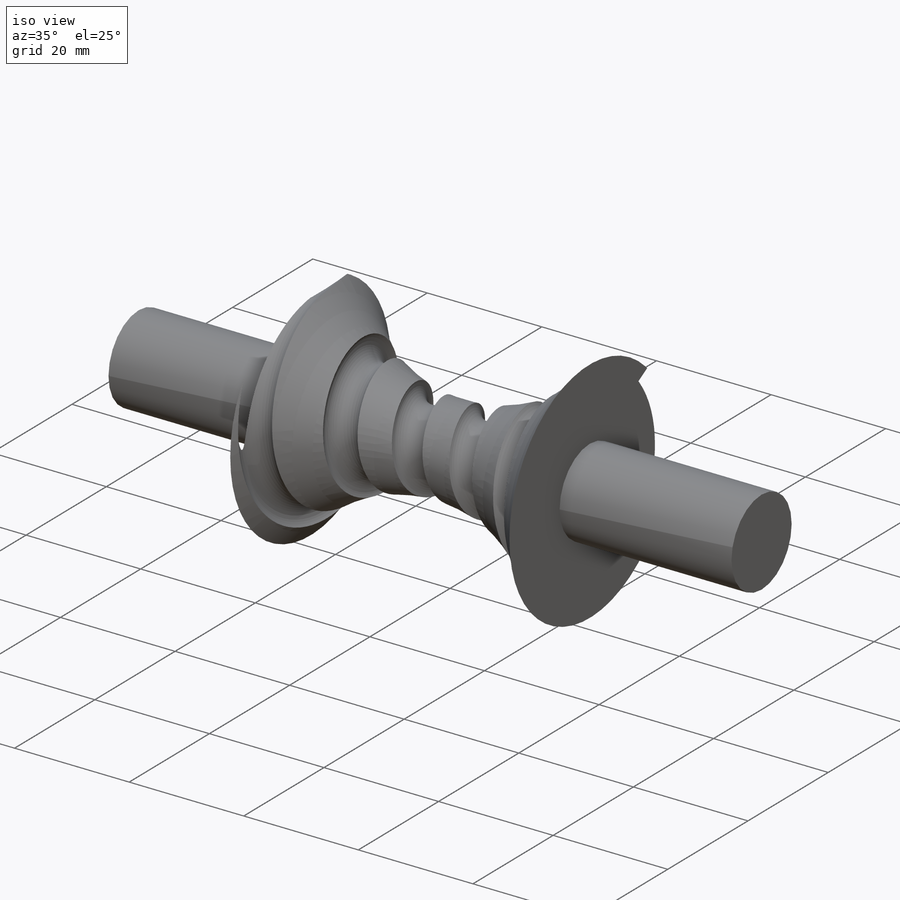
[diagram: iso view]
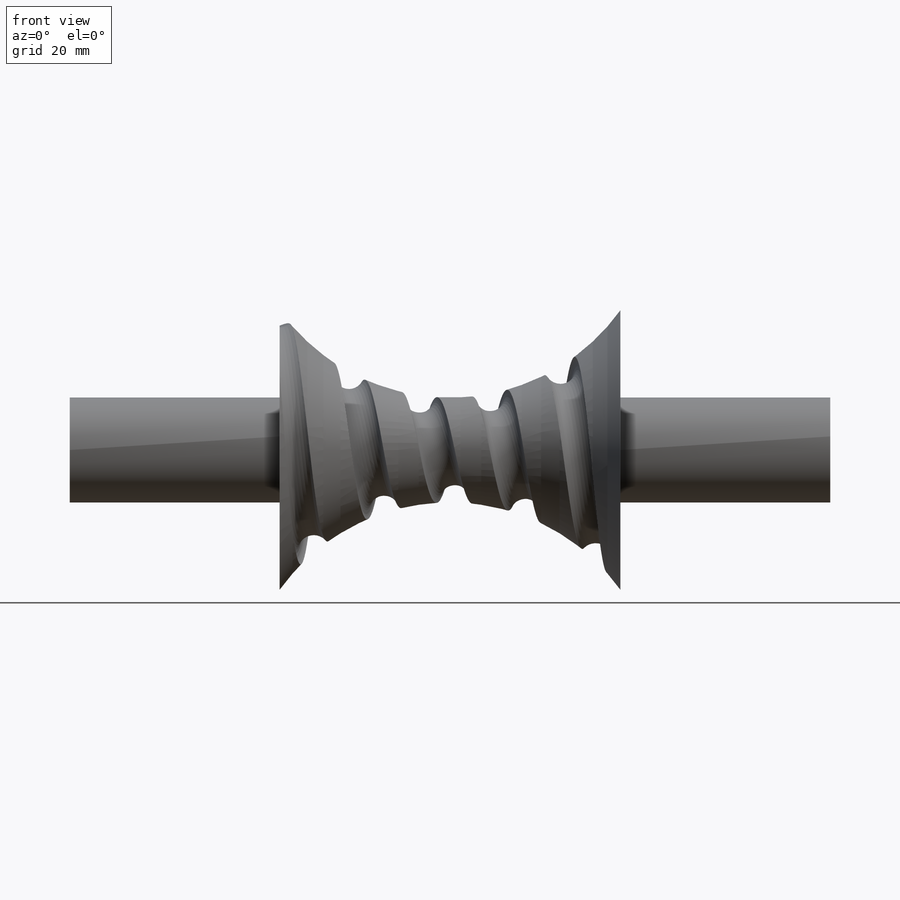
[diagram: front view]
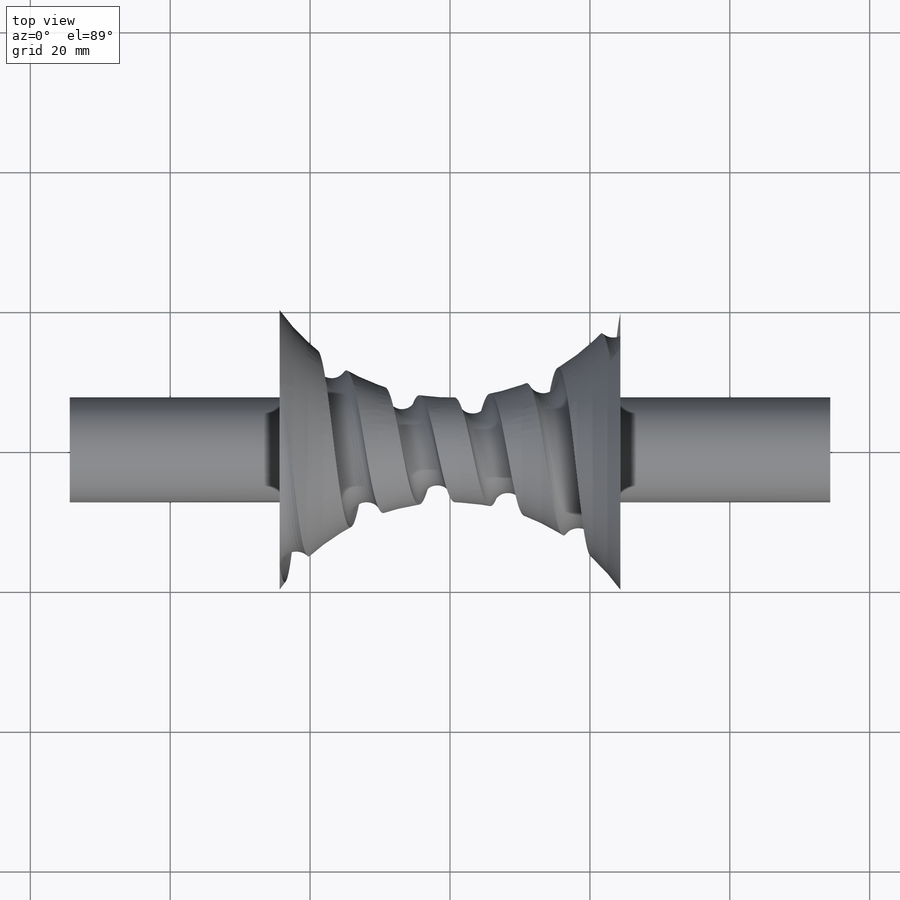
[diagram: top view]
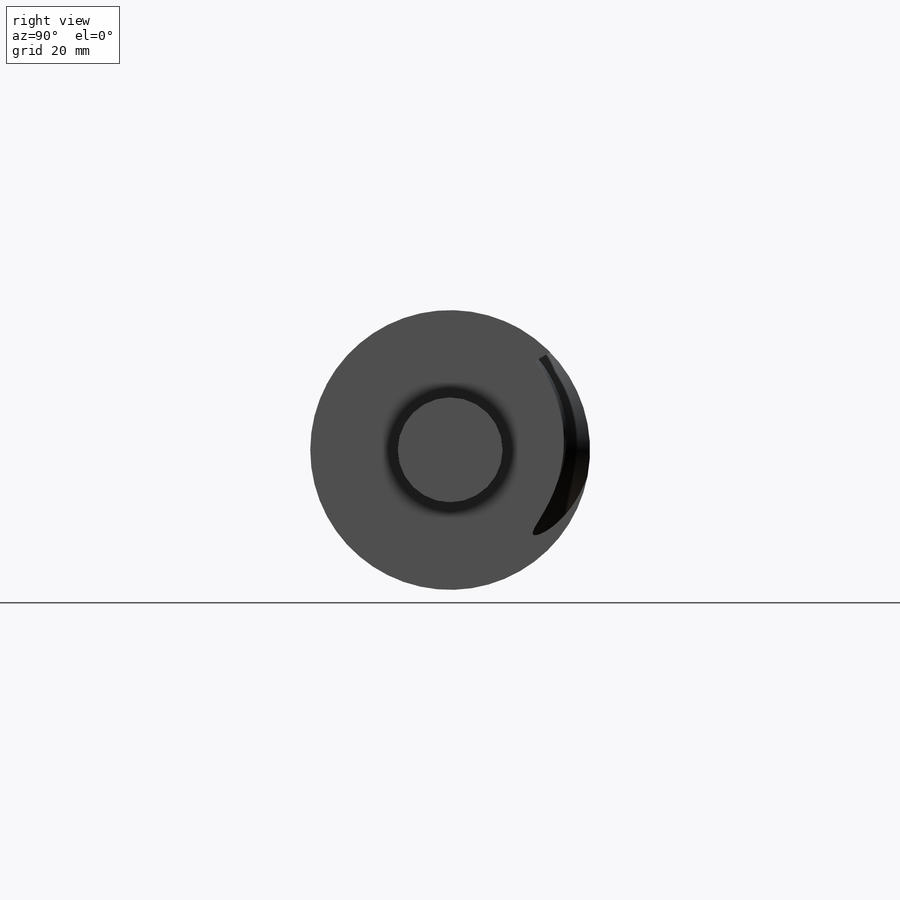
[diagram: right view]
SOLIDWORKS PART (.sldprt)
format: sldprt  version: not decoded by parser v0  size: 801,792 bytes
history: native  units: mm
features: plane x8, sketch x8, material x1, revolve x1, helix x1, sweep x1 (+8 scaffold rows collapsed)
feature tree (28):
  scaffold x8  (default folders/planes/origin — collapsed)
  material  "Matériau <non spécifié>"
  plane  "Plan de face"
  plane  "Plan de dessus"
  plane  "Plan de droite"
  sketch  "Esquisse1"  dims[c1.D1=30.0mm c1.D2=37.5mm c1.D3=20.0mm c1.D4=20.0mm c2.D3=15.0mm c2.D4=15.0mm c3.D3=15.0mm c3.D4=15.0mm c3.D5=30.0mm c3.D6=30.0mm c4.D3=20.0mm c4.D4=20.0mm c4.D7=~12.414608mm c4.D8=~12.212691mm c5.D7=~48.733972mm c5.D3=~92.466379deg c6.D7=20.0deg c6.D8=20.0deg]
  revolve  "Révolution1"  Angle=360deg
  sketch  "Esquisse8"  dims[c1.D1=37.5mm c1.D2=~15.803481mm c1.D3=6.1289mm c1.D4=~29.692415mm c1.D5=37.5mm c1.D6=~9.634289mm c1.D7=~29.992654mm c1.D8=~21.972896mm c2.D8=10.0deg c2.D9=~15.649515mm c3.D9=~18.134508deg c4.D9=~16.789391mm c5.D9=~163.331356deg c6.D9=~5.764944mm c6.D10=~5.162513mm c6.D11=~26.436216mm c6.D12=~19.991419mm c6.D13=~28.518194mm c6.D14=~23.613458mm c6.D15=~27.831817mm c6.D16=~22.323491mm c6.D2=20.0deg c6.D3=20.0deg c6.D4=20.0deg c6.D6=20.0deg c6.D7=20.0deg c7.D9=20.0deg c7.D10=20.0deg c7.D11=20.0deg c7.D12=20.0deg c7.D13=20.0deg c7.D14=20.0deg c7.D15=20.0deg c7.D16=20.0deg]
  sketch  "Esquisse9"  dims[c1.D1=37.5mm c1.D2=37.5mm c1.D3=~9.543141mm c1.D4=~29.990372mm c1.D5=~10.517344mm c1.D6=~29.998752mm c1.D7=~11.011142mm c2.D7=10.0deg c2.D8=~28.096005mm c2.D9=~22.804465mm c2.D10=~14.76237mm c2.D11=~28.283207mm c2.D12=~23.15629mm c2.D13=~26.778472mm c2.D14=~20.537864mm c2.D15=~29.206912mm c2.D16=~25.101839mm c2.D17=~26.824791mm c3.D9=~43.900744mm c4.D9=6.0deg c5.D9=~15.087451mm c6.D9=10.0deg c6.D3=20.0deg c6.D4=20.0deg c6.D5=20.0deg c6.D6=20.0deg c6.D8=20.0deg c7.D9=20.0deg c7.D10=20.0deg c7.D11=20.0deg c7.D12=20.0deg c7.D13=20.0deg c7.D14=20.0deg c7.D15=20.0deg c7.D16=20.0deg c7.D17=20.0deg c8.D9=18.0deg]
  plane  "Plan1"
  sketch  "Esquisse10"  dims[D1=5.0mm]
  plane  "Plan3"
  plane  "Plan4"
  plane  "Plan6"
  plane  "Plan7"
  sketch  "Sketch1"
  helix  "Helix/Spiral1"  Pitch=48.73mm
  sketch  "3DSketch2"
  sketch  "Sketch3"
  sketch  "3DSketch3"
  sweep  "Cut-Sweep1"
decode coverage: 6 of 11 modeling features carry decoded parameters
note: ~ marks probable driven/reference dimensions
note: suppression state not decoded; provenance and decode notes live in map.json
